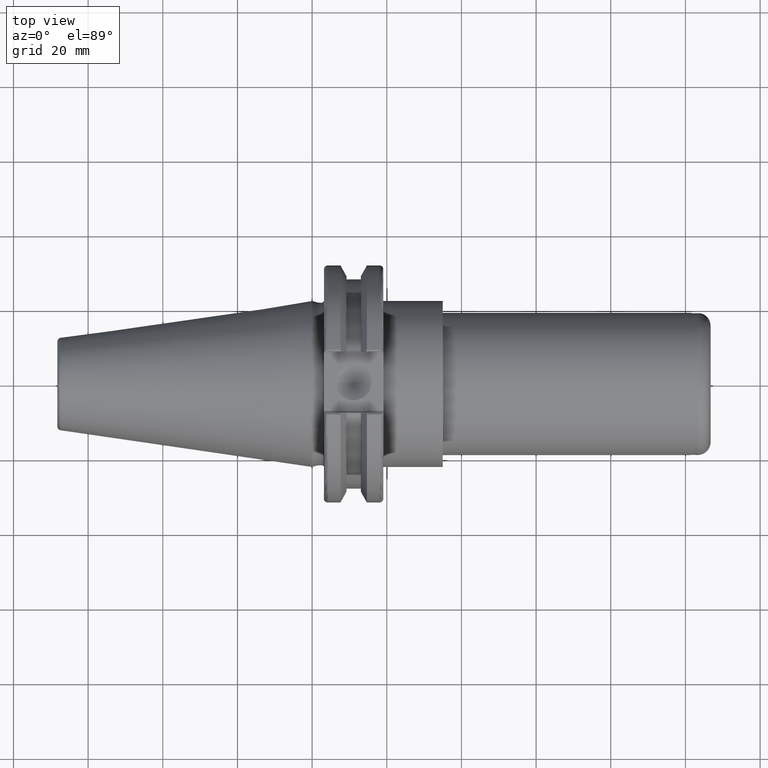
[diagram: clean part render]
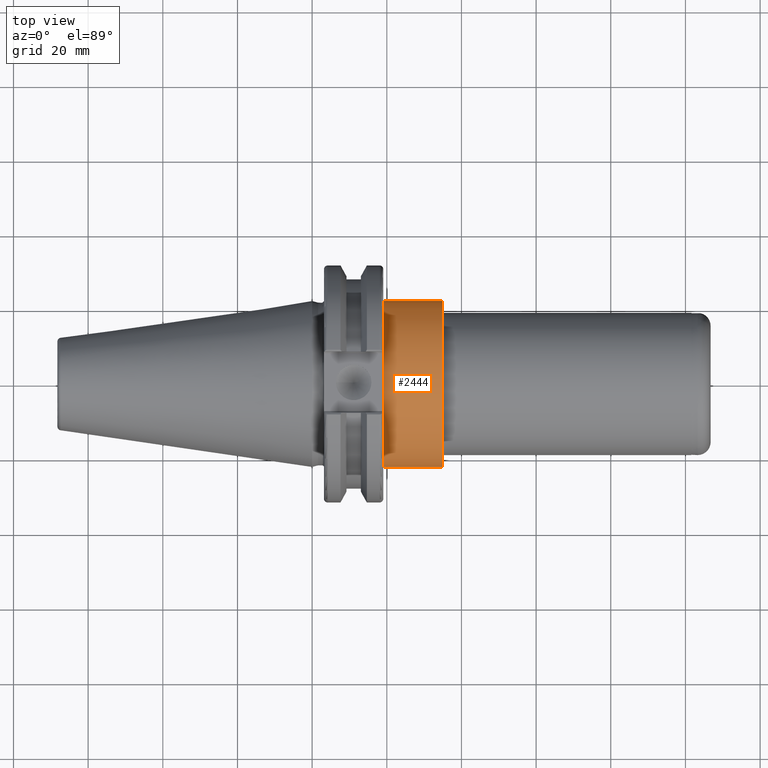
[diagram: same view with one face highlighted and labeled with its STEP entity id]
A machine part, top view. The second image highlights one B-rep face of the part: STEP entity #2444.
In plain terms, the highlighted cylindrical surface (bore or boss wall) has radius 22.225 mm, axis along (1, 0, 0).
Its self-contained STEP definition (entity closure, byte-faithful):
#521=CYLINDRICAL_SURFACE('',#2769,22.225);
#594=CIRCLE('',#2770,22.225);
#595=CIRCLE('',#2771,22.225);
#725=FACE_OUTER_BOUND('',#849,.T.);
#849=EDGE_LOOP('',(#1819,#1820,#1821,#1822));
#991=LINE('',#3810,#1140);
#1140=VECTOR('',#3092,22.225);
#1293=VERTEX_POINT('',#3807);
#1294=VERTEX_POINT('',#3809);
#1499=EDGE_CURVE('',#1293,#1293,#594,.T.);
#1500=EDGE_CURVE('',#1293,#1294,#991,.T.);
#1501=EDGE_CURVE('',#1294,#1294,#595,.T.);
#1819=ORIENTED_EDGE('',*,*,#1499,.F.);
#1820=ORIENTED_EDGE('',*,*,#1500,.T.);
#1821=ORIENTED_EDGE('',*,*,#1501,.F.);
#1822=ORIENTED_EDGE('',*,*,#1500,.F.);
#2444=ADVANCED_FACE('',(#725),#521,.T.);
#2769=AXIS2_PLACEMENT_3D('',#3806,#3088,#3089);
#2770=AXIS2_PLACEMENT_3D('',#3808,#3090,#3091);
#2771=AXIS2_PLACEMENT_3D('',#3811,#3093,#3094);
#3088=DIRECTION('center_axis',(1.,0.,0.));
#3089=DIRECTION('ref_axis',(0.,1.,0.));
#3090=DIRECTION('center_axis',(1.,0.,0.));
#3091=DIRECTION('ref_axis',(0.,0.,-1.));
#3092=DIRECTION('',(-1.,0.,0.));
#3093=DIRECTION('center_axis',(-1.,0.,0.));
#3094=DIRECTION('ref_axis',(0.,1.,0.));
#3806=CARTESIAN_POINT('Origin',(27.025,0.,0.));
#3807=CARTESIAN_POINT('',(35.,-22.225,-2.72177751110499E-15));
#3808=CARTESIAN_POINT('Origin',(35.,0.,0.));
#3809=CARTESIAN_POINT('',(19.05,-22.225,-2.72177751110499E-15));
#3810=CARTESIAN_POINT('',(27.025,-22.225,-2.72177751110499E-15));
#3811=CARTESIAN_POINT('Origin',(19.05,0.,0.));